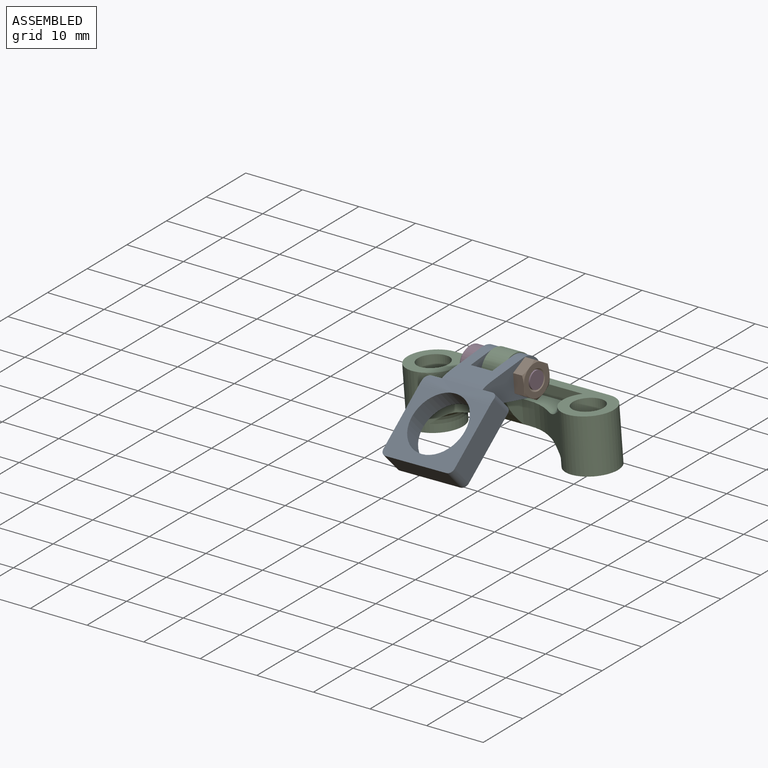
[diagram: assembled view]
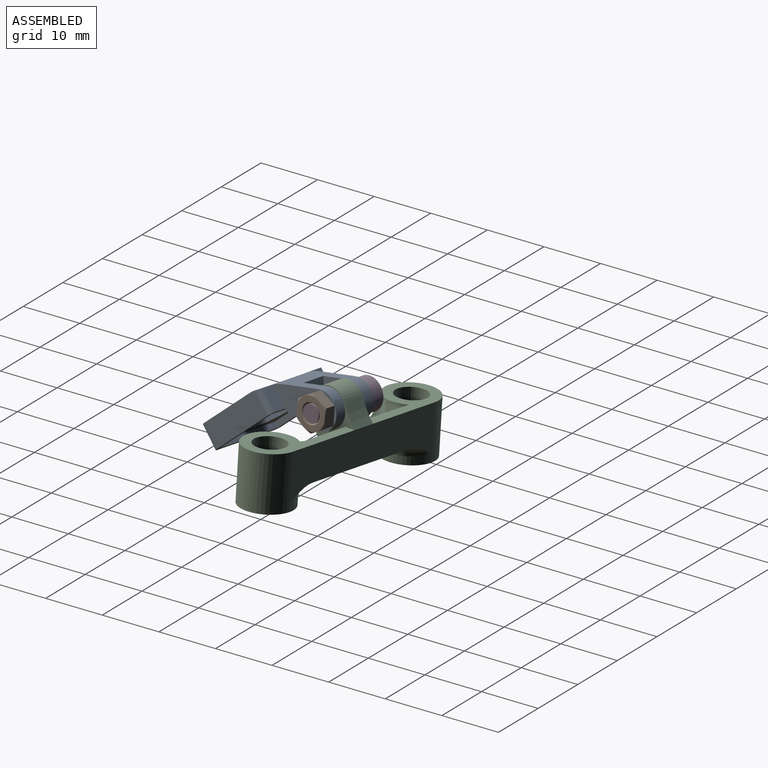
[diagram: assembled view, second angle]
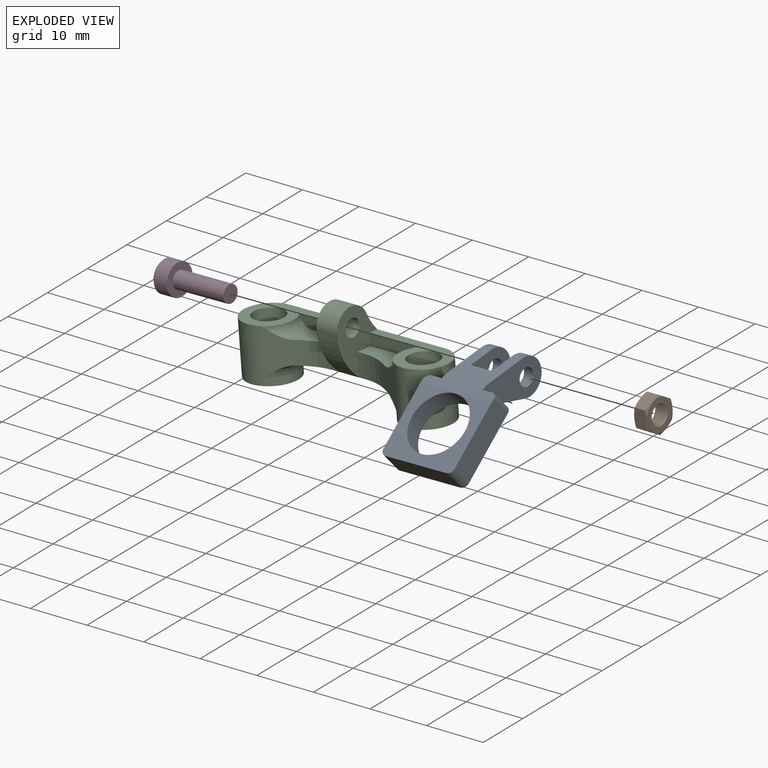
[diagram: exploded view]
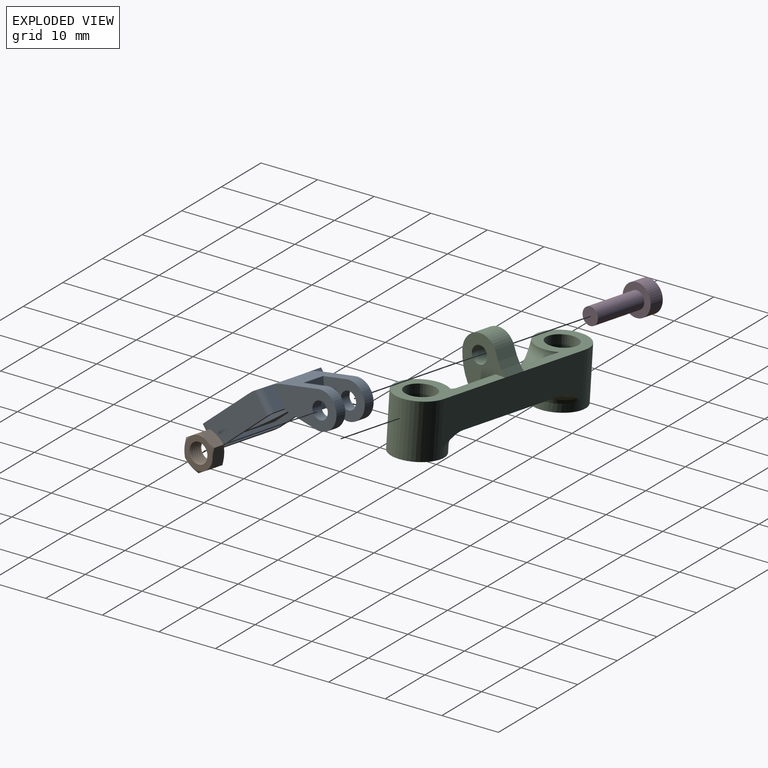
[diagram: exploded view, second angle]
ASSEMBLY  parts=4 mates=3
PART A: 30 faces, bbox 23.4x14x14.1 mm
  f0: plane 11.86x10.96mm, normal (0,1,0), area 50.7mm2, adj f19,f24,f25,f26,f29
  f1: plane 11.86x10.96mm, normal (0,-1,0), area 50.7mm2, adj f19,f24,f25,f27,f28
  f2: plane 10.07x8.83mm, normal (0,-1,0), area 12.4mm2, adj f3,f5,f22,f24
  f3: plane 12.4x0.76mm, normal (-0.76,0,-0.65), area 12.4mm2, adj f2,f4,f22,f24
  f4: plane 10.07x8.83mm, normal (0,1,0), area 12.4mm2, adj f3,f5,f22,f24
  f5: plane 12.4x0.76mm, normal (0.76,0,0.65), area 12.4mm2, adj f2,f4,f22,f24
  f6: cylinder r=5.2mm len=10.4mm, axis (-0.65,0,0.76), area 105.5mm2, adj f19,f22,f25
  f7: cylinder r=3.2mm len=6.4mm, axis (0,1,0), area 21.4mm2, adj f8,f11,f13,f16
  f8: plane 8x6.86mm, normal (-0.19,0,0.98), area 36.5mm2, adj f7,f10,f13,f14,f15,f16,f17,f25
  f9: cylinder r=1.5mm len=3mm, axis (0,1,0), area 17.9mm2, adj f14,f15
  f10: cylinder r=3.2mm len=6.4mm, axis (0,1,0), area 21.4mm2, adj f8,f11,f14,f15
  f11: plane 8x6mm, normal (-0.19,0,-0.98), area 33.4mm2, adj f7,f10,f13,f14,f15,f16,f17,f23
  f12: cylinder r=1.5mm len=3mm, axis (0,1,0), area 17.9mm2, adj f13,f16
  f13: plane 12.56x6.4mm, normal (0,-1,0), area 49.4mm2, adj f7,f8,f11,f12,f21,f23,f25
  f14: plane 12.56x6.4mm, normal (0,1,0), area 49.4mm2, adj f8,f9,f10,f11,f18,f23,f25
  f15: plane 8.32x6.4mm, normal (0,-1,0), area 35.3mm2, adj f8,f9,f10,f11,f17
  f16: plane 8.32x6.4mm, normal (0,1,0), area 35.3mm2, adj f7,f8,f11,f12,f17
  f17: plane 4.74x4.2mm, normal (0.98,0,0.19), area 20.3mm2, adj f8,f11,f15,f16
  f18: plane 2.99x2.56mm, normal (0.76,0,0.65), area 7.9mm2, adj f14,f24,f25,f29
  f19: plane 14x9.01mm, normal (-0.65,0,0.76), area 81.6mm2, adj f0,f1,f6,f20,f25,f26,f27
  f20: plane 12x3.21mm, normal (-0.76,0,-0.65), area 50.7mm2, adj f19,f24,f26,f27
  f21: plane 2.99x2.56mm, normal (0.76,0,0.65), area 7.9mm2, adj f13,f24,f25,f28
  f22: plane 12.4x9.42mm, normal (0.65,0,-0.76), area 68.8mm2, adj f2,f3,f4,f5,f6
  f23: plane 8x0.23mm, normal (-0.76,0,-0.65), area 2.4mm2, adj f11,f13,f14,f24
  f24: plane 14x10.63mm, normal (0.65,0,-0.76), area 41.4mm2, adj f0,f1,f2,f3,f4,f5,f18,f20
  f25: cylinder r=8mm len=14mm, axis (0,-1,0), area 45mm2, adj f0,f1,f6,f8,f13,f14,f18,f19
  f26: cylinder r=1mm len=3.86mm, axis (-0.65,0,0.76), area 6.6mm2, adj f0,f19,f20,f24
  f27: cylinder r=1mm len=3.86mm, axis (0.65,0,-0.76), area 6.6mm2, adj f1,f19,f20,f24
  f28: cylinder r=1mm len=3.8mm, axis (-0.65,0,0.76), area 6.4mm2, adj f1,f21,f24,f25
  f29: cylinder r=1mm len=3.8mm, axis (0.65,0,-0.76), area 6.4mm2, adj f0,f18,f24,f25
PART B: 25 faces, bbox 6.6x6.6x3.2 mm
  f0: plane 5.54x5.54mm, normal (0,0,1), area 14mm2, adj f5,f6,f8,f10,f12,f14,f21,f23
  f1: plane 5.54x5.54mm, normal (0,0,-1), area 14mm2, adj f3,f4,f7,f9,f11,f13,f22,f23
  f2: cylinder r=1.5mm len=3mm, axis (0,0,-1), area 3.4mm2, adj f21,f22,f23,f24
  f3: cone r=4.67mm half-angle=60deg, axis (0,0,1), area 0.7mm2, adj f1,f15,f16
  f4: cone r=4.67mm half-angle=60deg, axis (0,0,1), area 0.7mm2, adj f1,f15,f20
  f5: cone r=4.67mm half-angle=60deg, axis (0,0,-1), area 0.7mm2, adj f0,f15,f16
  f6: cone r=4.67mm half-angle=60deg, axis (0,0,-1), area 0.7mm2, adj f0,f15,f20
  f7: cone r=4.67mm half-angle=60deg, axis (0,0,1), area 0.7mm2, adj f1,f16,f17
  f8: cone r=4.67mm half-angle=60deg, axis (0,0,-1), area 0.7mm2, adj f0,f16,f17
  f9: cone r=4.67mm half-angle=60deg, axis (0,0,1), area 0.7mm2, adj f1,f17,f18
  f10: cone r=4.67mm half-angle=60deg, axis (0,0,-1), area 0.7mm2, adj f0,f17,f18
  f11: cone r=4.67mm half-angle=60deg, axis (0,0,1), area 0.7mm2, adj f1,f18,f19
  f12: cone r=4.67mm half-angle=60deg, axis (0,0,-1), area 0.7mm2, adj f0,f18,f19
  f13: cone r=4.67mm half-angle=60deg, axis (0,0,1), area 0.7mm2, adj f1,f19,f20
  f14: cone r=4.67mm half-angle=60deg, axis (0,0,-1), area 0.7mm2, adj f0,f19,f20
  f15: plane 3.01x2.77mm, normal (0.5,-0.87,0), area 7.4mm2, adj f3,f4,f5,f6,f16,f20
  f16: plane 3.01x2.77mm, normal (-0.5,-0.87,0), area 7.4mm2, adj f3,f5,f7,f8,f15,f17
  f17: plane 3.44x2.76mm, normal (-1,0,0), area 7.4mm2, adj f7,f8,f9,f10,f16,f18
  f18: plane 3.01x2.77mm, normal (-0.5,0.87,0), area 7.4mm2, adj f9,f10,f11,f12,f17,f19
  f19: plane 3.01x2.77mm, normal (0.5,0.87,0), area 7.4mm2, adj f11,f12,f13,f14,f18,f20
  f20: plane 3.44x2.76mm, normal (1,0,0), area 7.4mm2, adj f4,f6,f13,f14,f15,f19
  f21: cone r=1.5mm half-angle=45deg, axis (0,0,1), area 1.8mm2, adj f0,f2,f23,f24
  f22: cone r=1.75mm half-angle=45deg, axis (0,0,-1), area 1.8mm2, adj f1,f2,f23,f24
  f23: bspline ~4.26x3.69mm, area 19.6mm2, adj f0,f1,f2,f21,f22,f24
  f24: bspline ~4.26x3.69mm, area 19.6mm2, adj f0,f1,f2,f21,f22,f23
PART C: 31 faces, bbox 39.5x16.1x14.8 mm
  f0: plane 17.75x9mm, normal (0,0,-1), area 60mm2, adj f1,f6,f7,f12,f21,f28
  f1: plane 30.5x8mm, normal (0,1,0), area 189.9mm2, adj f0,f5,f6,f10,f23,f26,f29,f30
  f2: plane 9x9mm, normal (0,0,1), area 40.7mm2, adj f6,f7
  f3: plane 9x9mm, normal (0,0,1), area 40.7mm2, adj f5,f8
  f4: plane 7.34x4.44mm, normal (0,0,-1), area 21.8mm2, adj f11,f14,f16,f22,f25,f27
  f5: cylinder r=4.5mm len=9.4mm, axis (0,0,-1), area 170.4mm2, adj f1,f3,f16,f23,f29
  f6: cylinder r=4.5mm len=9.4mm, axis (0,0,-1), area 170.4mm2, adj f0,f1,f2,f15,f30
  f7: cylinder r=2.7mm len=9.4mm, axis (0,0,-1), area 159.5mm2, adj f0,f2
  f8: cylinder r=2.7mm len=9.4mm, axis (0,0,-1), area 159.5mm2, adj f3,f23
  f9: plane 7.34x4.44mm, normal (0,0,-1), area 21.8mm2, adj f12,f13,f15,f21,f24,f28
  f10: plane 21.12x6.24mm, normal (0,0,1), area 89.9mm2, adj f1,f13,f14,f15,f16,f18,f24,f25
  f11: plane 11.35x8.5mm, normal (-1,0,0), area 45.4mm2, adj f4,f14,f17,f18,f19,f20,f22,f23
  f12: plane 11.35x8.5mm, normal (1,0,0), area 45.4mm2, adj f0,f9,f13,f17,f18,f19,f20,f21
  f13: plane 4x1.23mm, normal (0,-1,0), area 4.9mm2, adj f9,f10,f12,f24
  f14: plane 4x1.23mm, normal (0,-1,0), area 4.9mm2, adj f4,f10,f11,f25
  f15: plane 8x5.15mm, normal (-0.47,-0.88,0), area 30.3mm2, adj f6,f9,f10,f24,f28,f30
  f16: plane 8x5.15mm, normal (0.47,-0.88,0), area 30.3mm2, adj f4,f5,f10,f25,f27,f29
  f17: cylinder r=1.5mm len=4mm, axis (1,0,0), area 37.7mm2, adj f11,f12
  f18: plane 4x1.07mm, normal (0,-0.71,0.71), area 6.1mm2, adj f10,f11,f12,f20
  f19: cylinder r=3.35mm len=6.47mm, axis (1,0,0), area 37.1mm2, adj f11,f12,f20,f26
  f20: cylinder r=10mm len=6.93mm, axis (1,0,0), area 30.8mm2, adj f11,f12,f18,f19
  f21: plane 9.65x2mm, normal (0,-1,0), area 18.3mm2, adj f0,f9,f12,f28
  f22: plane 9.65x2mm, normal (0,-1,0), area 18.3mm2, adj f4,f11,f23,f27
  f23: plane 17.75x9mm, normal (0,0,-1), area 60mm2, adj f1,f5,f8,f11,f22,f27
  f24: cylinder r=10mm len=4.74mm, axis (0,0,1), area 19.7mm2, adj f9,f10,f13,f15
  f25: cylinder r=10mm len=4.74mm, axis (0,0,-1), area 19.7mm2, adj f4,f10,f14,f16
  f26: cylinder r=10mm len=4mm, axis (-1,0,0), area 15.3mm2, adj f1,f11,f12,f19
  f27: torus R=6.5mm, axis (0,0,1), area 18.7mm2, adj f4,f16,f22,f23
  f28: torus R=6.5mm, axis (0,0,1), area 18.7mm2, adj f0,f9,f15,f21
  f29: torus R=6.5mm, axis (0,0,1), area 27.6mm2, adj f1,f5,f10,f16
  f30: torus R=6.5mm, axis (0,0,1), area 27.6mm2, adj f1,f6,f10,f15
PART D: 13 faces, bbox 5.5x5.5x13 mm
  f0: plane 4.7x4.7mm, normal (0,0,1), area 11.9mm2, adj f5,f6,f7,f8,f9,f10,f12
  f1: cylinder r=2.75mm len=5.5mm, axis (0,0,1), area 44.9mm2, adj f2,f12
  f2: plane 5.5x5.5mm, normal (0,0,-1), area 16.7mm2, adj f1,f3
  f3: cylinder r=1.5mm len=10mm, axis (0,0,1), area 94.2mm2, adj f2,f4
  f4: plane 3x3mm, normal (0,0,-1), area 7.1mm2, adj f3
  f5: plane 1.44x1.3mm, normal (0,-1,0), area 1.9mm2, adj f0,f6,f10,f11
  f6: plane 1.3x1.25mm, normal (0.87,-0.5,0), area 1.9mm2, adj f0,f5,f7,f11
  f7: plane 1.3x1.25mm, normal (0.87,0.5,0), area 1.9mm2, adj f0,f6,f8,f11
  f8: plane 1.44x1.3mm, normal (0,1,0), area 1.9mm2, adj f0,f7,f9,f11
  f9: plane 1.3x1.25mm, normal (-0.87,0.5,0), area 1.9mm2, adj f0,f8,f10,f11
  f10: plane 1.3x1.25mm, normal (-0.87,-0.5,0), area 1.9mm2, adj f0,f5,f9,f11
  f11: plane 2.89x2.5mm, normal (0,0,1), area 5.4mm2, adj f5,f6,f7,f8,f9,f10
  f12: cone r=2.35mm half-angle=45deg, axis (0,0,-1), area 9.1mm2, adj f0,f1
PLACE A rot(axis=(-0.05,-0.04,1),82.7deg) t=(59.72,-16.86,2.09)mm
PLACE B rot(axis=(0.54,-0.62,-0.57),127.1deg) t=(64.92,-13.7,2.36)mm
PLACE C rot(axis=(0.06,1,0),175.1deg) t=(75.81,-14.43,-0.72)mm
PLACE D rot(axis=(-0.74,0.05,0.68),174.9deg) t=(53.31,-12.18,1.37)mm
MATE cylindrical B.f1 <-> D.f3  axis (0.99,-0.13,0.08) through (66.15,-13.85,2.47)mm
MATE revolute A.f7 <-> C.f17  axis (-0.99,0.13,-0.08) through (62.3,-13.35,2.14)mm
MATE cylindrical D.f3 <-> A.f7  axis (-0.99,0.13,-0.08) through (56.27,-12.57,1.63)mm
